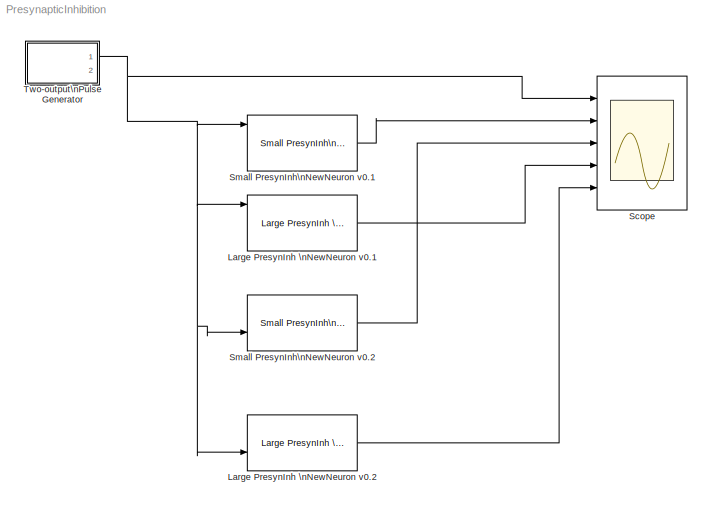
MODEL PresynapticInhibition
KIND model
BLOCK [Reference] Large PresynInh \nNewNeuron v0.1  REF=NeuroModelerLibrary/Simple Cells/Large PresynInh \nNewNeuron v0.1
  AllowZeroVariantControls = off
  AutoFrameSizeCalculation = off
  Latency = 0
  Ports = [5, 3]
  PropagateVariantConditions = off
  RTWMemSecDataConstants = Inherit from model
  RTWMemSecDataInternal = Inherit from model
  RTWMemSecDataParameters = Inherit from model
  RTWMemSecFuncExecute = Inherit from model
  RTWMemSecFuncInitTerm = Inherit from model
  SID = 225
  ShowPortLabels = FromPortIcon
  SourceBlock = NeuroModelerLibrary/Simple Cells/Large PresynInh \nNewNeuron v0.1
  SourceType = SubSystem
  SystemSampleTime = -1
  VariantActivationTime = update diagram
BLOCK [Reference] Large PresynInh \nNewNeuron v0.2  REF=NeuroModelerLibrary/Simple Cells/Large PresynInh \nNewNeuron v0.1
  AllowZeroVariantControls = off
  AutoFrameSizeCalculation = off
  Latency = 0
  Ports = [5, 3]
  PropagateVariantConditions = off
  RTWMemSecDataConstants = Inherit from model
  RTWMemSecDataInternal = Inherit from model
  RTWMemSecDataParameters = Inherit from model
  RTWMemSecFuncExecute = Inherit from model
  RTWMemSecFuncInitTerm = Inherit from model
  SID = 226
  ShowPortLabels = FromPortIcon
  SourceBlock = NeuroModelerLibrary/Simple Cells/Large PresynInh \nNewNeuron v0.1
  SourceType = SubSystem
  SystemSampleTime = -1
  VariantActivationTime = update diagram
BLOCK [Scope] Scope
  Floating = off
  NumInputPorts = 5
  Ports = [5]
  SID = 105
  ScopeSpecificationString = Simulink.scopes.TimeScopeBlockCfg('CurrentConfiguration', extmgr.ConfigurationSet(extmgr.Configuration('Core','General UI',true),extmgr.Configuration('Core','Source UI',true),extmgr.Configuration('Sources','WiredSimulink',true,'DataLoggingSaveFormat','StructureWithTime','DataLoggingMaxPoints','50000','DataLoggingLimitDataPoints',true,'DataLoggingDecimation','1','DataLoggingDecimateData',true),extm...<+4562ch>
BLOCK [Reference] Small PresynInh\nNewNeuron v0.1  REF=NeuroModelerLibrary/Simple Cells/Small PresynInh\nNewNeuron v0.1
  AllowZeroVariantControls = off
  AutoFrameSizeCalculation = off
  Latency = 0
  Ports = [5, 3]
  PropagateVariantConditions = off
  RTWMemSecDataConstants = Inherit from model
  RTWMemSecDataInternal = Inherit from model
  RTWMemSecDataParameters = Inherit from model
  RTWMemSecFuncExecute = Inherit from model
  RTWMemSecFuncInitTerm = Inherit from model
  SID = 223
  ShowPortLabels = FromPortIcon
  SourceBlock = NeuroModelerLibrary/Simple Cells/Small PresynInh\nNewNeuron v0.1
  SourceType = SubSystem
  SystemSampleTime = -1
  VariantActivationTime = update diagram
BLOCK [Reference] Small PresynInh\nNewNeuron v0.2  REF=NeuroModelerLibrary/Simple Cells/Small PresynInh\nNewNeuron v0.1
  AllowZeroVariantControls = off
  AutoFrameSizeCalculation = off
  Latency = 0
  Ports = [5, 3]
  PropagateVariantConditions = off
  RTWMemSecDataConstants = Inherit from model
  RTWMemSecDataInternal = Inherit from model
  RTWMemSecDataParameters = Inherit from model
  RTWMemSecFuncExecute = Inherit from model
  RTWMemSecFuncInitTerm = Inherit from model
  SID = 224
  ShowPortLabels = FromPortIcon
  SourceBlock = NeuroModelerLibrary/Simple Cells/Small PresynInh\nNewNeuron v0.1
  SourceType = SubSystem
  SystemSampleTime = -1
  VariantActivationTime = update diagram
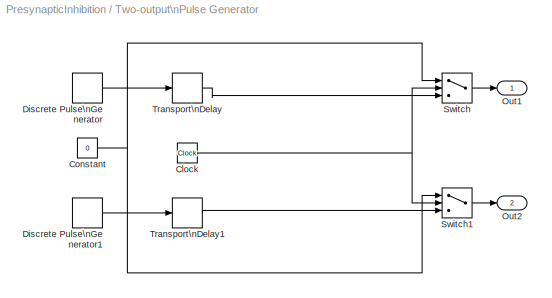
BLOCK [SubSystem] Two-output\nPulse Generator
  Ports = [0, 2]
  RequestExecContextInheritance = off
  SID = 210
BLOCK [Clock] Two-output\nPulse Generator/Clock
  SID = 211
BLOCK [Constant] Two-output\nPulse Generator/Constant
  SID = 212
  Value = 0
BLOCK [DiscretePulseGenerator] Two-output\nPulse Generator/Discrete Pulse\nGenerator
  Amplitude = A
  Period = P1
  Ports = [0, 1]
  PulseWidth = PW
  SID = 213
  SampleTime = ST
BLOCK [DiscretePulseGenerator] Two-output\nPulse Generator/Discrete Pulse\nGenerator1
  Amplitude = A
  Period = P2
  Ports = [0, 1]
  PulseWidth = PW
  SID = 214
  SampleTime = ST
BLOCK [Outport] Two-output\nPulse Generator/Out1
  InitialOutput = 0
  SID = 219
BLOCK [Outport] Two-output\nPulse Generator/Out2
  InitialOutput = 0
  Port = 2
  SID = 220
BLOCK [Switch] Two-output\nPulse Generator/Switch
  SID = 215
  Threshold = OOff1
BLOCK [Switch] Two-output\nPulse Generator/Switch1
  SID = 216
  Threshold = OOff2
BLOCK [TransportDelay] Two-output\nPulse Generator/Transport\nDelay
  DelayTime = OOn1
  Ports = [1, 1]
  SID = 217
BLOCK [TransportDelay] Two-output\nPulse Generator/Transport\nDelay1
  DelayTime = OOn2
  Ports = [1, 1]
  SID = 218
LINE Large PresynInh \nNewNeuron v0.1:2 -> Scope:4
LINE Large PresynInh \nNewNeuron v0.2:2 -> Scope:5
LINE Small PresynInh\nNewNeuron v0.1:2 -> Scope:2
LINE Small PresynInh\nNewNeuron v0.2:2 -> Scope:3
NET Two-output\nPulse Generator/Clock:1 -> Two-output\nPulse Generator/Switch1:2, Two-output\nPulse Generator/Switch:2
NET Two-output\nPulse Generator/Constant:1 -> Two-output\nPulse Generator/Switch1:1, Two-output\nPulse Generator/Switch:1
LINE Two-output\nPulse Generator/Discrete Pulse\nGenerator1:1 -> Two-output\nPulse Generator/Transport\nDelay1:1
LINE Two-output\nPulse Generator/Discrete Pulse\nGenerator:1 -> Two-output\nPulse Generator/Transport\nDelay:1
LINE Two-output\nPulse Generator/Switch1:1 -> Two-output\nPulse Generator/Out2:1
LINE Two-output\nPulse Generator/Switch:1 -> Two-output\nPulse Generator/Out1:1
LINE Two-output\nPulse Generator/Transport\nDelay1:1 -> Two-output\nPulse Generator/Switch1:3
LINE Two-output\nPulse Generator/Transport\nDelay:1 -> Two-output\nPulse Generator/Switch:3
NET Two-output\nPulse Generator:1 -> Large PresynInh \nNewNeuron v0.1:1, Large PresynInh \nNewNeuron v0.2:4, Scope:1, Small PresynInh\nNewNeuron v0.1:1, Small PresynInh\nNewNeuron v0.2:4
note: NET lines group one-source signal fan-out (src -> all destinations, sorted); 1:1 wires keep LINE
